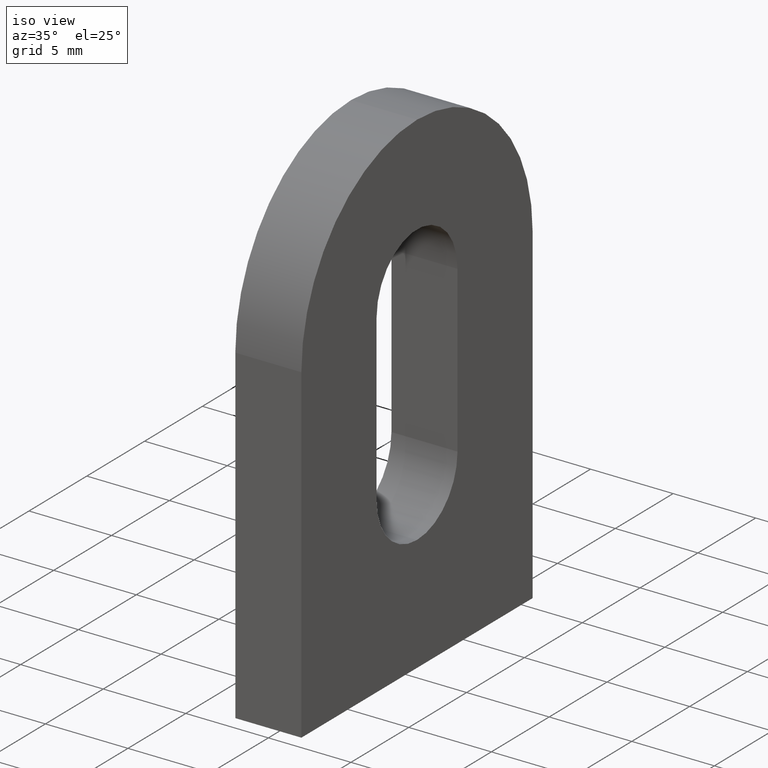
[diagram: clean part render]
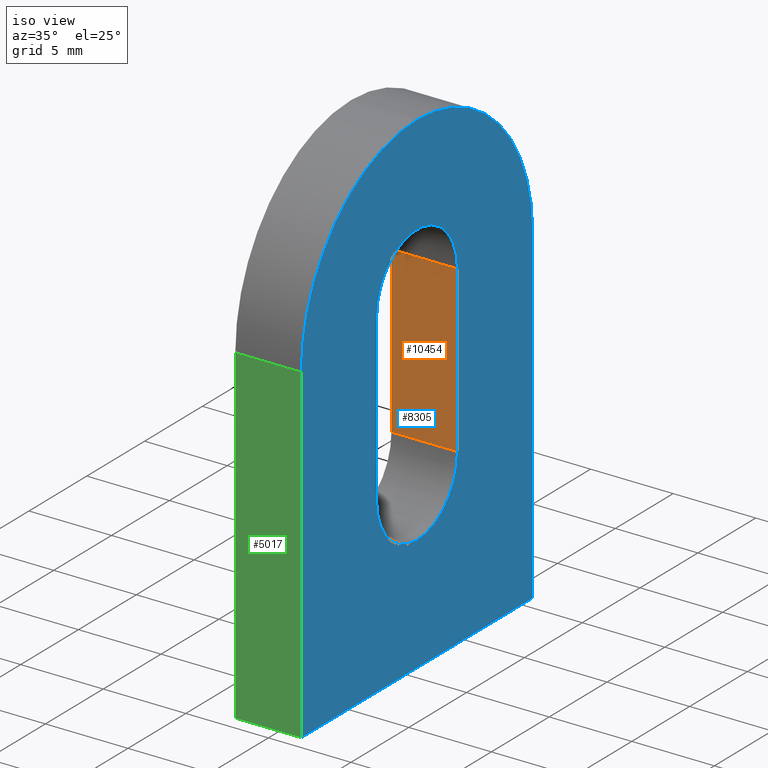
[diagram: same view with three faces highlighted in distinct colors, each labeled with its STEP entity id]
A machine part, iso view with three faces highlighted in distinct colors.
Their STEP definitions:

[orange] entity #10454 — the highlighted planar face has unit normal (0, 1, -0).
#748 = CARTESIAN_POINT ( 'NONE',  ( 2.000000000000000000, 3.499999999999999600, 20.49999999999999600 ) ) ;
#1403 = VECTOR ( 'NONE', #1721, 1000.000000000000000 ) ;
#1572 = VERTEX_POINT ( 'NONE', #3861 ) ;
#1721 = DIRECTION ( 'NONE',  ( -0.0000000000000000000, 4.336808689942017100E-017, 1.000000000000000000 ) ) ;
#1998 = VERTEX_POINT ( 'NONE', #4210 ) ;
#2179 = LINE ( 'NONE', #7519, #8118 ) ;
#2373 = CARTESIAN_POINT ( 'NONE',  ( -2.000000000000000000, 3.499999999999999600, 20.49999999999999600 ) ) ;
#2796 = ORIENTED_EDGE ( 'NONE', *, *, #5591, .F. ) ;
#3250 = ORIENTED_EDGE ( 'NONE', *, *, #10571, .F. ) ;
#3445 = LINE ( 'NONE', #748, #11650 ) ;
#3798 = LINE ( 'NONE', #8129, #1403 ) ;
#3861 = CARTESIAN_POINT ( 'NONE',  ( 2.000000000000000000, 3.499999999999999100, 10.49999999999999500 ) ) ;
#3918 = AXIS2_PLACEMENT_3D ( 'NONE', #2373, #7942, #8710 ) ;
#4176 = ORIENTED_EDGE ( 'NONE', *, *, #6420, .T. ) ;
#4210 = CARTESIAN_POINT ( 'NONE',  ( -2.000000000000000000, 3.499999999999999100, 10.49999999999999500 ) ) ;
#4391 = EDGE_LOOP ( 'NONE', ( #4176, #2796, #3250, #7990 ) ) ;
#5390 = CARTESIAN_POINT ( 'NONE',  ( -2.000000000000000000, 3.499999999999999600, 20.49999999999999600 ) ) ;
#5395 = VERTEX_POINT ( 'NONE', #6609 ) ;
#5591 = EDGE_CURVE ( 'NONE', #5395, #8839, #9968, .T. ) ;
#5790 = DIRECTION ( 'NONE',  ( 1.000000000000000000, -0.0000000000000000000, -0.0000000000000000000 ) ) ;
#6162 = VECTOR ( 'NONE', #8023, 1000.000000000000000 ) ;
#6420 = EDGE_CURVE ( 'NONE', #1572, #8839, #3445, .T. ) ;
#6609 = CARTESIAN_POINT ( 'NONE',  ( -2.000000000000000000, 3.499999999999999600, 20.49999999999999600 ) ) ;
#6796 = EDGE_CURVE ( 'NONE', #1998, #1572, #2179, .T. ) ;
#7066 = DIRECTION ( 'NONE',  ( -0.0000000000000000000, 4.336808689942017100E-017, 1.000000000000000000 ) ) ;
#7519 = CARTESIAN_POINT ( 'NONE',  ( -2.000000000000000000, 3.499999999999999100, 10.49999999999999500 ) ) ;
#7793 = PLANE ( 'NONE',  #3918 ) ;
#7891 = FACE_OUTER_BOUND ( 'NONE', #4391, .T. ) ;
#7942 = DIRECTION ( 'NONE',  ( 0.0000000000000000000, 1.000000000000000000, -4.336808689942017100E-017 ) ) ;
#7990 = ORIENTED_EDGE ( 'NONE', *, *, #6796, .T. ) ;
#8023 = DIRECTION ( 'NONE',  ( 1.000000000000000000, -0.0000000000000000000, -0.0000000000000000000 ) ) ;
#8118 = VECTOR ( 'NONE', #5790, 1000.000000000000000 ) ;
#8129 = CARTESIAN_POINT ( 'NONE',  ( -2.000000000000000000, 3.499999999999999600, 20.49999999999999600 ) ) ;
#8710 = DIRECTION ( 'NONE',  ( 0.0000000000000000000, 4.336808689942017100E-017, 1.000000000000000000 ) ) ;
#8839 = VERTEX_POINT ( 'NONE', #11127 ) ;
#9968 = LINE ( 'NONE', #5390, #6162 ) ;
#10454 = ADVANCED_FACE ( 'NONE', ( #7891 ), #7793, .F. ) ;
#10571 = EDGE_CURVE ( 'NONE', #1998, #5395, #3798, .T. ) ;
#11127 = CARTESIAN_POINT ( 'NONE',  ( 2.000000000000000000, 3.499999999999999600, 20.49999999999999600 ) ) ;
#11650 = VECTOR ( 'NONE', #7066, 1000.000000000000000 ) ;

[blue] entity #8305 — the highlighted planar face has unit normal (-1, -0, 0).
#269 = LINE ( 'NONE', #1528, #6795 ) ;
#484 = CARTESIAN_POINT ( 'NONE',  ( 2.000000000000000000, 0.0000000000000000000, 19.99999999999999600 ) ) ;
#748 = CARTESIAN_POINT ( 'NONE',  ( 2.000000000000000000, 3.499999999999999600, 20.49999999999999600 ) ) ;
#855 = CARTESIAN_POINT ( 'NONE',  ( 2.000000000000000000, 0.0000000000000000000, 19.99999999999999600 ) ) ;
#867 = CARTESIAN_POINT ( 'NONE',  ( 2.000000000000000000, 10.00000000000000000, 19.99999999999999600 ) ) ;
#880 = DIRECTION ( 'NONE',  ( -1.000000000000000000, -0.0000000000000000000, 0.0000000000000000000 ) ) ;
#995 = EDGE_CURVE ( 'NONE', #2825, #11587, #269, .T. ) ;
#1257 = CIRCLE ( 'NONE', #9588, 3.499999999999999600 ) ;
#1294 = ORIENTED_EDGE ( 'NONE', *, *, #11370, .F. ) ;
#1464 = PLANE ( 'NONE',  #7449 ) ;
#1528 = CARTESIAN_POINT ( 'NONE',  ( 2.000000000000000000, -10.00000000000000000, -3.061616997868383000E-015 ) ) ;
#1572 = VERTEX_POINT ( 'NONE', #3861 ) ;
#1793 = CIRCLE ( 'NONE', #4461, 10.00000000000000200 ) ;
#1888 = CARTESIAN_POINT ( 'NONE',  ( 2.000000000000000000, -10.00000000000000000, 19.99999999999999600 ) ) ;
#2046 = AXIS2_PLACEMENT_3D ( 'NONE', #7771, #2316, #2355 ) ;
#2147 = ORIENTED_EDGE ( 'NONE', *, *, #2674, .F. ) ;
#2160 = VERTEX_POINT ( 'NONE', #4803 ) ;
#2174 = CARTESIAN_POINT ( 'NONE',  ( 2.000000000000000000, -6.123233995736767300E-016, 10.49999999999999500 ) ) ;
#2291 = DIRECTION ( 'NONE',  ( 0.0000000000000000000, 0.0000000000000000000, -1.000000000000000000 ) ) ;
#2316 = DIRECTION ( 'NONE',  ( 1.000000000000000000, 0.0000000000000000000, 0.0000000000000000000 ) ) ;
#2355 = DIRECTION ( 'NONE',  ( 0.0000000000000000000, 0.0000000000000000000, -1.000000000000000000 ) ) ;
#2416 = CARTESIAN_POINT ( 'NONE',  ( 2.000000000000000000, 10.00000000000000000, -3.061616997868383000E-015 ) ) ;
#2422 = CARTESIAN_POINT ( 'NONE',  ( 2.000000000000000000, -3.500000000000000000, 10.49999999999999500 ) ) ;
#2515 = EDGE_CURVE ( 'NONE', #4422, #6538, #11577, .T. ) ;
#2674 = EDGE_CURVE ( 'NONE', #11587, #3668, #1793, .T. ) ;
#2698 = VERTEX_POINT ( 'NONE', #3498 ) ;
#2825 = VERTEX_POINT ( 'NONE', #7446 ) ;
#3028 = LINE ( 'NONE', #9768, #10257 ) ;
#3067 = EDGE_CURVE ( 'NONE', #8839, #2160, #10706, .T. ) ;
#3445 = LINE ( 'NONE', #748, #11650 ) ;
#3498 = CARTESIAN_POINT ( 'NONE',  ( 2.000000000000000000, -6.123233995736767300E-016, 6.999999999999995600 ) ) ;
#3668 = VERTEX_POINT ( 'NONE', #9918 ) ;
#3861 = CARTESIAN_POINT ( 'NONE',  ( 2.000000000000000000, 3.499999999999999100, 10.49999999999999500 ) ) ;
#4093 = ORIENTED_EDGE ( 'NONE', *, *, #4285, .F. ) ;
#4285 = EDGE_CURVE ( 'NONE', #6538, #2825, #6311, .T. ) ;
#4314 = CARTESIAN_POINT ( 'NONE',  ( 2.000000000000000000, 0.0000000000000000000, 19.99999999999999600 ) ) ;
#4328 = VECTOR ( 'NONE', #10666, 1000.000000000000000 ) ;
#4340 = DIRECTION ( 'NONE',  ( 1.000000000000000000, 0.0000000000000000000, 0.0000000000000000000 ) ) ;
#4422 = VERTEX_POINT ( 'NONE', #867 ) ;
#4461 = AXIS2_PLACEMENT_3D ( 'NONE', #855, #7247, #6046 ) ;
#4673 = ORIENTED_EDGE ( 'NONE', *, *, #5416, .F. ) ;
#4730 = VERTEX_POINT ( 'NONE', #2422 ) ;
#4803 = CARTESIAN_POINT ( 'NONE',  ( 2.000000000000000000, -3.499999999999999600, 20.49999999999999600 ) ) ;
#5333 = ORIENTED_EDGE ( 'NONE', *, *, #6420, .F. ) ;
#5416 = EDGE_CURVE ( 'NONE', #2698, #1572, #10671, .T. ) ;
#5724 = EDGE_LOOP ( 'NONE', ( #2147, #7808, #4093, #8358, #1294 ) ) ;
#5795 = EDGE_CURVE ( 'NONE', #2160, #4730, #3028, .T. ) ;
#6046 = DIRECTION ( 'NONE',  ( 0.0000000000000000000, 0.0000000000000000000, 1.000000000000000000 ) ) ;
#6311 = LINE ( 'NONE', #2416, #4328 ) ;
#6395 = ORIENTED_EDGE ( 'NONE', *, *, #3067, .F. ) ;
#6420 = EDGE_CURVE ( 'NONE', #1572, #8839, #3445, .T. ) ;
#6445 = EDGE_LOOP ( 'NONE', ( #7696, #6395, #5333, #4673, #7721 ) ) ;
#6538 = VERTEX_POINT ( 'NONE', #9655 ) ;
#6558 = CARTESIAN_POINT ( 'NONE',  ( 2.000000000000000000, 10.00000000000000000, 19.99999999999999600 ) ) ;
#6795 = VECTOR ( 'NONE', #7861, 1000.000000000000000 ) ;
#6822 = DIRECTION ( 'NONE',  ( 0.0000000000000000000, 0.0000000000000000000, 1.000000000000000000 ) ) ;
#7066 = DIRECTION ( 'NONE',  ( -0.0000000000000000000, 4.336808689942017100E-017, 1.000000000000000000 ) ) ;
#7247 = DIRECTION ( 'NONE',  ( -1.000000000000000000, -0.0000000000000000000, 0.0000000000000000000 ) ) ;
#7446 = CARTESIAN_POINT ( 'NONE',  ( 2.000000000000000000, -10.00000000000000000, -3.061616997868383000E-015 ) ) ;
#7449 = AXIS2_PLACEMENT_3D ( 'NONE', #484, #8639, #6822 ) ;
#7696 = ORIENTED_EDGE ( 'NONE', *, *, #5795, .F. ) ;
#7721 = ORIENTED_EDGE ( 'NONE', *, *, #10378, .F. ) ;
#7771 = CARTESIAN_POINT ( 'NONE',  ( 2.000000000000000000, 0.0000000000000000000, 20.49999999999999600 ) ) ;
#7808 = ORIENTED_EDGE ( 'NONE', *, *, #995, .F. ) ;
#7861 = DIRECTION ( 'NONE',  ( 0.0000000000000000000, 0.0000000000000000000, 1.000000000000000000 ) ) ;
#8305 = ADVANCED_FACE ( 'NONE', ( #8546, #8945 ), #1464, .F. ) ;
#8358 = ORIENTED_EDGE ( 'NONE', *, *, #2515, .F. ) ;
#8365 = DIRECTION ( 'NONE',  ( 0.0000000000000000000, 0.0000000000000000000, -1.000000000000000000 ) ) ;
#8546 = FACE_BOUND ( 'NONE', #6445, .T. ) ;
#8610 = AXIS2_PLACEMENT_3D ( 'NONE', #4314, #880, #10790 ) ;
#8639 = DIRECTION ( 'NONE',  ( -1.000000000000000000, -0.0000000000000000000, 0.0000000000000000000 ) ) ;
#8839 = VERTEX_POINT ( 'NONE', #11127 ) ;
#8864 = CIRCLE ( 'NONE', #8610, 10.00000000000000200 ) ;
#8887 = DIRECTION ( 'NONE',  ( 0.0000000000000000000, -4.336808689942017100E-017, -1.000000000000000000 ) ) ;
#8945 = FACE_OUTER_BOUND ( 'NONE', #5724, .T. ) ;
#9017 = VECTOR ( 'NONE', #8365, 1000.000000000000000 ) ;
#9525 = DIRECTION ( 'NONE',  ( 1.000000000000000000, 0.0000000000000000000, 0.0000000000000000000 ) ) ;
#9588 = AXIS2_PLACEMENT_3D ( 'NONE', #11543, #4340, #9685 ) ;
#9641 = AXIS2_PLACEMENT_3D ( 'NONE', #2174, #9525, #2291 ) ;
#9655 = CARTESIAN_POINT ( 'NONE',  ( 2.000000000000000000, 10.00000000000000000, -3.061616997868383000E-015 ) ) ;
#9685 = DIRECTION ( 'NONE',  ( 0.0000000000000000000, 0.0000000000000000000, -1.000000000000000000 ) ) ;
#9768 = CARTESIAN_POINT ( 'NONE',  ( 2.000000000000000000, -3.499999999999999600, 20.49999999999999600 ) ) ;
#9918 = CARTESIAN_POINT ( 'NONE',  ( 2.000000000000000000, 0.0000000000000000000, 30.00000000000000000 ) ) ;
#10257 = VECTOR ( 'NONE', #8887, 1000.000000000000000 ) ;
#10378 = EDGE_CURVE ( 'NONE', #4730, #2698, #1257, .T. ) ;
#10666 = DIRECTION ( 'NONE',  ( 0.0000000000000000000, -1.000000000000000000, 0.0000000000000000000 ) ) ;
#10671 = CIRCLE ( 'NONE', #9641, 3.499999999999999600 ) ;
#10706 = CIRCLE ( 'NONE', #2046, 3.499999999999999600 ) ;
#10790 = DIRECTION ( 'NONE',  ( 0.0000000000000000000, 0.0000000000000000000, 1.000000000000000000 ) ) ;
#11127 = CARTESIAN_POINT ( 'NONE',  ( 2.000000000000000000, 3.499999999999999600, 20.49999999999999600 ) ) ;
#11370 = EDGE_CURVE ( 'NONE', #3668, #4422, #8864, .T. ) ;
#11543 = CARTESIAN_POINT ( 'NONE',  ( 2.000000000000000000, -6.123233995736767300E-016, 10.49999999999999500 ) ) ;
#11577 = LINE ( 'NONE', #6558, #9017 ) ;
#11587 = VERTEX_POINT ( 'NONE', #1888 ) ;
#11650 = VECTOR ( 'NONE', #7066, 1000.000000000000000 ) ;

[green] entity #5017 — the highlighted planar face has unit normal (0, -1, 0).
#269 = LINE ( 'NONE', #1528, #6795 ) ;
#274 = CARTESIAN_POINT ( 'NONE',  ( 2.000000000000000000, -10.00000000000000000, -3.061616997868383000E-015 ) ) ;
#508 = FACE_OUTER_BOUND ( 'NONE', #5327, .T. ) ;
#539 = DIRECTION ( 'NONE',  ( 0.0000000000000000000, -0.0000000000000000000, -1.000000000000000000 ) ) ;
#832 = VECTOR ( 'NONE', #11150, 1000.000000000000000 ) ;
#976 = CARTESIAN_POINT ( 'NONE',  ( -2.000000000000000000, -10.00000000000000000, -3.061616997868383000E-015 ) ) ;
#995 = EDGE_CURVE ( 'NONE', #2825, #11587, #269, .T. ) ;
#1001 = CARTESIAN_POINT ( 'NONE',  ( 2.000000000000000000, -10.00000000000000000, 19.99999999999999600 ) ) ;
#1528 = CARTESIAN_POINT ( 'NONE',  ( 2.000000000000000000, -10.00000000000000000, -3.061616997868383000E-015 ) ) ;
#1565 = ORIENTED_EDGE ( 'NONE', *, *, #9210, .T. ) ;
#1888 = CARTESIAN_POINT ( 'NONE',  ( 2.000000000000000000, -10.00000000000000000, 19.99999999999999600 ) ) ;
#2626 = CARTESIAN_POINT ( 'NONE',  ( -2.000000000000000000, -10.00000000000000000, 19.99999999999999600 ) ) ;
#2825 = VERTEX_POINT ( 'NONE', #7446 ) ;
#3253 = PLANE ( 'NONE',  #10256 ) ;
#3423 = LINE ( 'NONE', #1001, #7245 ) ;
#3890 = VERTEX_POINT ( 'NONE', #6762 ) ;
#4017 = DIRECTION ( 'NONE',  ( -1.000000000000000000, -0.0000000000000000000, -0.0000000000000000000 ) ) ;
#4253 = ORIENTED_EDGE ( 'NONE', *, *, #995, .T. ) ;
#4552 = EDGE_CURVE ( 'NONE', #3890, #6637, #11671, .T. ) ;
#4907 = VECTOR ( 'NONE', #10033, 1000.000000000000000 ) ;
#5017 = ADVANCED_FACE ( 'NONE', ( #508 ), #3253, .T. ) ;
#5327 = EDGE_LOOP ( 'NONE', ( #9964, #5445, #4253, #1565 ) ) ;
#5445 = ORIENTED_EDGE ( 'NONE', *, *, #9958, .F. ) ;
#6637 = VERTEX_POINT ( 'NONE', #2626 ) ;
#6762 = CARTESIAN_POINT ( 'NONE',  ( -2.000000000000000000, -10.00000000000000000, -3.061616997868383000E-015 ) ) ;
#6795 = VECTOR ( 'NONE', #7861, 1000.000000000000000 ) ;
#7192 = LINE ( 'NONE', #274, #832 ) ;
#7245 = VECTOR ( 'NONE', #4017, 1000.000000000000000 ) ;
#7446 = CARTESIAN_POINT ( 'NONE',  ( 2.000000000000000000, -10.00000000000000000, -3.061616997868383000E-015 ) ) ;
#7846 = CARTESIAN_POINT ( 'NONE',  ( 2.000000000000000000, -10.00000000000000000, -3.061616997868383000E-015 ) ) ;
#7861 = DIRECTION ( 'NONE',  ( 0.0000000000000000000, 0.0000000000000000000, 1.000000000000000000 ) ) ;
#7884 = DIRECTION ( 'NONE',  ( 0.0000000000000000000, -1.000000000000000000, 0.0000000000000000000 ) ) ;
#9210 = EDGE_CURVE ( 'NONE', #11587, #6637, #3423, .T. ) ;
#9958 = EDGE_CURVE ( 'NONE', #2825, #3890, #7192, .T. ) ;
#9964 = ORIENTED_EDGE ( 'NONE', *, *, #4552, .F. ) ;
#10033 = DIRECTION ( 'NONE',  ( 0.0000000000000000000, 0.0000000000000000000, 1.000000000000000000 ) ) ;
#10256 = AXIS2_PLACEMENT_3D ( 'NONE', #7846, #7884, #539 ) ;
#11150 = DIRECTION ( 'NONE',  ( -1.000000000000000000, -0.0000000000000000000, -0.0000000000000000000 ) ) ;
#11587 = VERTEX_POINT ( 'NONE', #1888 ) ;
#11671 = LINE ( 'NONE', #976, #4907 ) ;